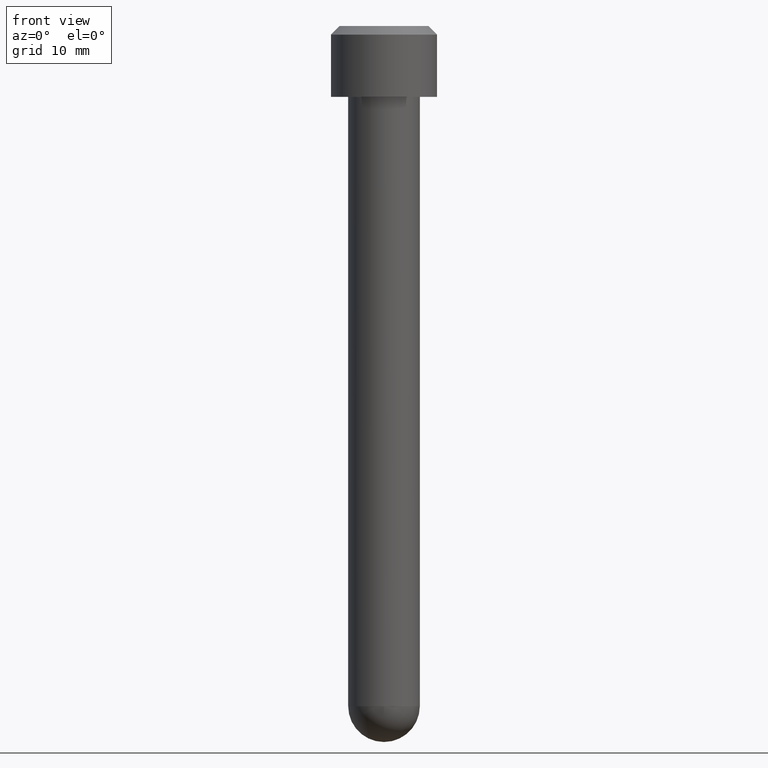
[diagram: clean part render]
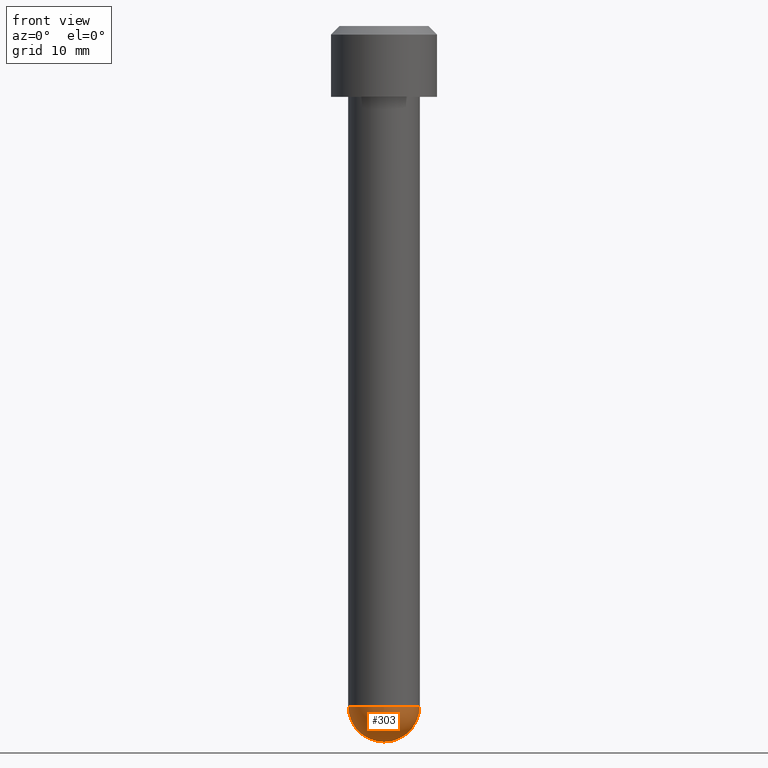
[diagram: same view with one face highlighted and labeled with its STEP entity id]
A machine part, front view. The second image highlights one B-rep face of the part: STEP entity #303.
In plain terms, the highlighted spherical surface has radius 3.175 mm.
Its self-contained STEP definition (entity closure, byte-faithful):
#10 = EDGE_CURVE ( 'NONE', #129, #84, #480, .T. ) ;
#16 = AXIS2_PLACEMENT_3D ( 'NONE', #266, #275, #293 ) ;
#32 = AXIS2_PLACEMENT_3D ( 'NONE', #248, #176, #89 ) ;
#35 = EDGE_CURVE ( 'NONE', #129, #175, #352, .T. ) ;
#59 = AXIS2_PLACEMENT_3D ( 'NONE', #106, #178, #90 ) ;
#60 = AXIS2_PLACEMENT_3D ( 'NONE', #134, #172, #255 ) ;
#62 = EDGE_CURVE ( 'NONE', #175, #84, #390, .T. ) ;
#84 = VERTEX_POINT ( 'NONE', #108 ) ;
#89 = DIRECTION ( 'NONE',  ( 1.000000000000000000, 0.0000000000000000000, 0.0000000000000000000 ) ) ;
#90 = DIRECTION ( 'NONE',  ( 0.0000000000000000000, 0.0000000000000000000, -1.000000000000000000 ) ) ;
#96 = CARTESIAN_POINT ( 'NONE',  ( 7.654042494670957500E-018, 0.0000000000000000000, -2.497000000000000300 ) ) ;
#106 = CARTESIAN_POINT ( 'NONE',  ( 0.0000000000000000000, 0.0000000000000000000, -2.372000000000000300 ) ) ;
#108 = CARTESIAN_POINT ( 'NONE',  ( 0.1250000000000000000, 0.0000000000000000000, -2.372000000000000300 ) ) ;
#129 = VERTEX_POINT ( 'NONE', #96 ) ;
#134 = CARTESIAN_POINT ( 'NONE',  ( 0.0000000000000000000, 0.0000000000000000000, -2.372000000000000300 ) ) ;
#172 = DIRECTION ( 'NONE',  ( 1.224646799147353200E-016, 1.000000000000000000, -0.0000000000000000000 ) ) ;
#175 = VERTEX_POINT ( 'NONE', #179 ) ;
#176 = DIRECTION ( 'NONE',  ( -0.0000000000000000000, -0.0000000000000000000, 1.000000000000000000 ) ) ;
#178 = DIRECTION ( 'NONE',  ( 0.0000000000000000000, -1.000000000000000000, 0.0000000000000000000 ) ) ;
#179 = CARTESIAN_POINT ( 'NONE',  ( -0.1250000000000000000, 1.530808498934191500E-017, -2.372000000000000300 ) ) ;
#248 = CARTESIAN_POINT ( 'NONE',  ( 0.0000000000000000000, 0.0000000000000000000, -2.372000000000000300 ) ) ;
#255 = DIRECTION ( 'NONE',  ( -1.000000000000000000, 1.224646799147353200E-016, 0.0000000000000000000 ) ) ;
#266 = CARTESIAN_POINT ( 'NONE',  ( 0.0000000000000000000, 0.0000000000000000000, -2.372000000000000300 ) ) ;
#275 = DIRECTION ( 'NONE',  ( 0.0000000000000000000, 1.000000000000000000, 0.0000000000000000000 ) ) ;
#293 = DIRECTION ( 'NONE',  ( 1.000000000000000000, 0.0000000000000000000, 0.0000000000000000000 ) ) ;
#303 = ADVANCED_FACE ( 'NONE', ( #417 ), #482, .T. ) ;
#352 = CIRCLE ( 'NONE', #60, 0.1250000000000000000 ) ;
#361 = ORIENTED_EDGE ( 'NONE', *, *, #10, .T. ) ;
#371 = EDGE_LOOP ( 'NONE', ( #397, #361, #409 ) ) ;
#390 = CIRCLE ( 'NONE', #32, 0.1250000000000000000 ) ;
#397 = ORIENTED_EDGE ( 'NONE', *, *, #35, .F. ) ;
#409 = ORIENTED_EDGE ( 'NONE', *, *, #62, .F. ) ;
#417 = FACE_OUTER_BOUND ( 'NONE', #371, .T. ) ;
#480 = CIRCLE ( 'NONE', #59, 0.1249999999999999000 ) ;
#482 = SPHERICAL_SURFACE ( 'NONE', #16, 0.1250000000000000000 ) ;